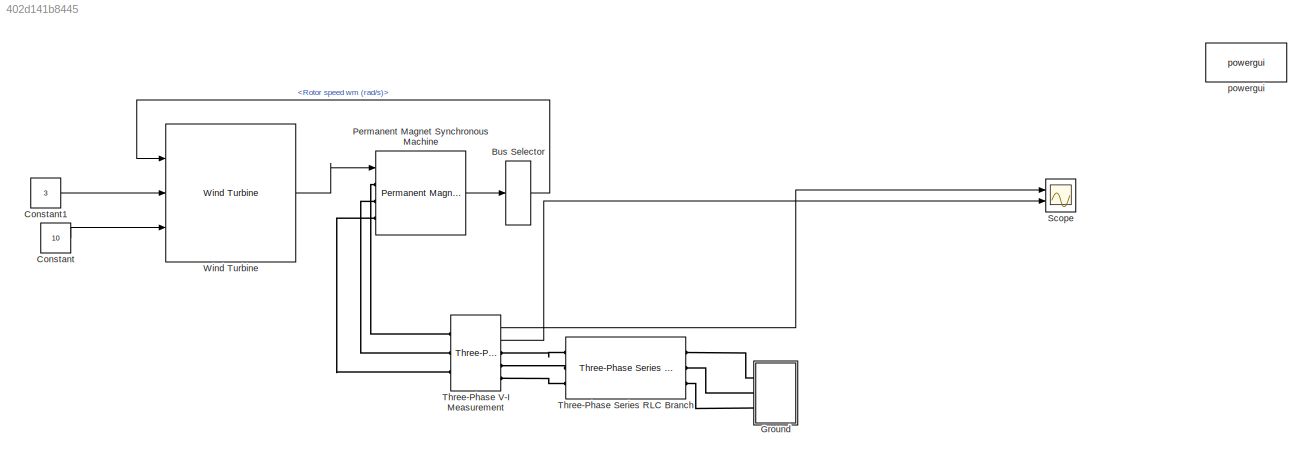
MODEL slx_402d141b8445
KIND model
CONFIG AbsTol = auto
CONFIG EnableMultiTasking = off
CONFIG FixedStep = auto
CONFIG MaxStep = auto
CONFIG MinStep = auto
CONFIG RelTol = 1e-3
CONFIG SampleTimeConstraint = Unconstrained
CONFIG Solver = VariableStepAuto
CONFIG SolverName = VariableStepAuto
CONFIG StartTime = 0.0
CONFIG StopTime = 10.0
BLOCK [BusSelector] Bus Selector
  OutputAsBus = off
  OutputSignals = Rotor speed wm (rad/s)
  Ports = [1, 1]
BLOCK [Constant] Constant
  Value = 10
BLOCK [Constant] Constant1
  Value = 3
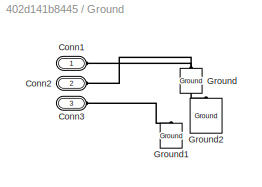
BLOCK [SubSystem] Ground
  Ports = [0, 0, 0, 0, 0, 3]
  RequestExecContextInheritance = off
BLOCK [PMIOPort] Ground/Conn1
  Side = Left
BLOCK [PMIOPort] Ground/Conn2
  Port = 2
  Side = Left
BLOCK [PMIOPort] Ground/Conn3
  Port = 3
  Side = Left
BLOCK [Reference] Ground/Ground  REF=powerlib/Elements/Ground
  Ports = [0, 0, 0, 0, 0, 1]
  SourceBlock = powerlib/Elements/Ground
  SourceProductBaseCode = PS
  SourceProductName = Simscape Electrical
  SourceType = Ground
BLOCK [Reference] Ground/Ground1  REF=powerlib/Elements/Ground
  Ports = [0, 0, 0, 0, 0, 1]
  SourceBlock = powerlib/Elements/Ground
  SourceProductBaseCode = PS
  SourceProductName = Simscape Electrical
  SourceType = Ground
BLOCK [Reference] Ground/Ground2  REF=powerlib/Elements/Ground
  Ports = [0, 0, 0, 0, 0, 1]
  SourceBlock = powerlib/Elements/Ground
  SourceProductBaseCode = PS
  SourceProductName = Simscape Electrical
  SourceType = Ground
BLOCK [Reference] Permanent Magnet Synchronous Machine  REF=powerlib/Machines/Permanent Magnet
Synchronous Machine
  Ports = [1, 1, 0, 0, 0, 3]
  SourceBlock = powerlib/Machines/Permanent Magnet\nSynchronous Machine
  SourceProductBaseCode = PS
  SourceProductName = Simscape Electrical
  SourceType = Permanent Magnet Synchronous Machine
BLOCK [Scope] Scope
  Floating = off
  NumInputPorts = 2
  Ports = [2]
  ScopeSpecificationString = Simulink.scopes.TimeScopeBlockCfg('CurrentConfiguration', extmgr.ConfigurationSet(extmgr.Configuration('Core','General UI',true),extmgr.Configuration('Core','Source UI',true),extmgr.Configuration('Sources','WiredSimulink',true),extmgr.Configuration('Visuals','Time Domain',true,'SerializedDisplays',{struct('MinYLimReal','-1.11247','MaxYLimReal','1.19461','YLabelReal','','MinYLimMag','0.00000','MaxY...<+2257ch>
BLOCK [Reference] Three-Phase Series RLC Branch  REF=powerlib/Elements/Three-Phase
Series RLC Branch
  AttributesFormatString = \n
  Ports = [0, 0, 0, 0, 0, 3, 3]
  SourceBlock = powerlib/Elements/Three-Phase\nSeries RLC Branch
  SourceProductBaseCode = PS
  SourceProductName = Simscape Electrical
  SourceType = Three-Phase Series RLC Branch
BLOCK [Reference] Three-Phase V-I Measurement  REF=powerlib/Measurements/Three-Phase
V-I Measurement
  Ports = [0, 2, 0, 0, 0, 3, 3]
  SourceBlock = powerlib/Measurements/Three-Phase\nV-I Measurement
  SourceProductBaseCode = PS
  SourceProductName = Simscape Electrical
  SourceType = Three-Phase VI Measurement
BLOCK [Reference] Wind Turbine  REF=re_lib/Wind Generation/Wind Turbine
  Ports = [3, 1]
  SourceBlock = re_lib/Wind Generation/Wind Turbine
  SourceProductBaseCode = PS
  SourceProductName = Simscape Electrical
  SourceType = Wind Turbine
BLOCK [Reference] powergui  REF=powerlib/powergui
  Ports = []
  Priority = 1
  SourceBlock = powerlib/powergui
  SourceProductBaseCode = PS
  SourceProductName = Simscape Electrical
  SourceType = PSB option menu block
LINE Bus Selector:1 -> Wind Turbine:1
LINE Constant1:1 -> Wind Turbine:2
LINE Constant:1 -> Wind Turbine:3
LINE Permanent Magnet Synchronous Machine:1 -> Bus Selector:1
LINE Three-Phase V-I Measurement:1 -> Scope:1
LINE Three-Phase V-I Measurement:2 -> Scope:2
LINE Wind Turbine:1 -> Permanent Magnet Synchronous Machine:1
PLINE Ground/Conn1:RConn1 -- Ground/Ground:LConn1
PLINE Ground/Conn2:RConn1 -- Ground/Ground2:LConn1
PLINE Ground/Conn3:RConn1 -- Ground/Ground1:LConn1
PLINE Ground:LConn1 -- Three-Phase Series RLC Branch:LConn1
PLINE Ground:LConn2 -- Three-Phase Series RLC Branch:LConn2
PLINE Ground:LConn3 -- Three-Phase Series RLC Branch:LConn3
PLINE Permanent Magnet Synchronous Machine:LConn1 -- Three-Phase V-I Measurement:LConn1
PLINE Permanent Magnet Synchronous Machine:LConn2 -- Three-Phase V-I Measurement:LConn2
PLINE Permanent Magnet Synchronous Machine:LConn3 -- Three-Phase V-I Measurement:LConn3
PLINE Three-Phase Series RLC Branch:RConn1 -- Three-Phase V-I Measurement:RConn1
PLINE Three-Phase Series RLC Branch:RConn2 -- Three-Phase V-I Measurement:RConn2
PLINE Three-Phase Series RLC Branch:RConn3 -- Three-Phase V-I Measurement:RConn3
